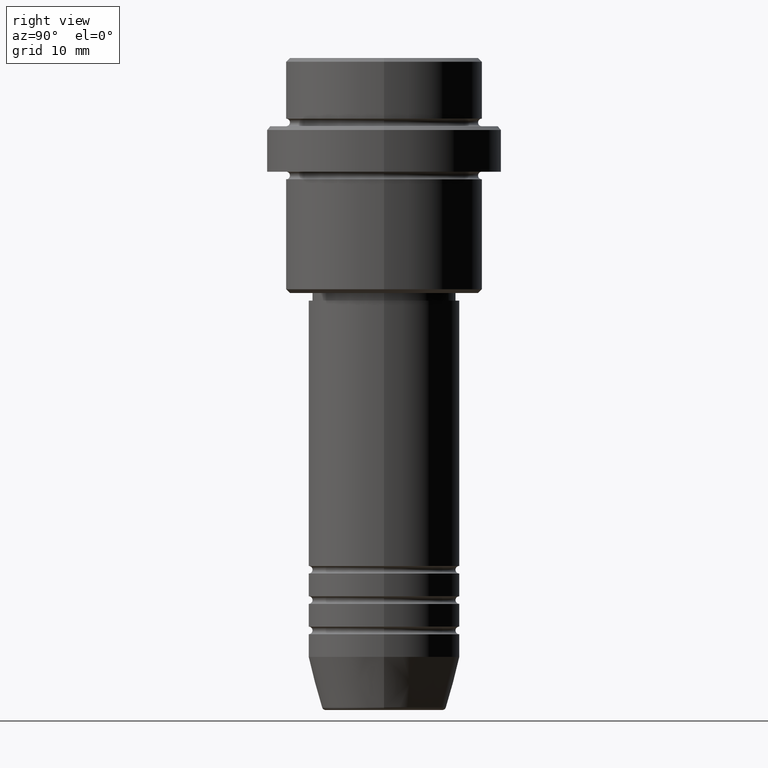
[diagram: clean part render]
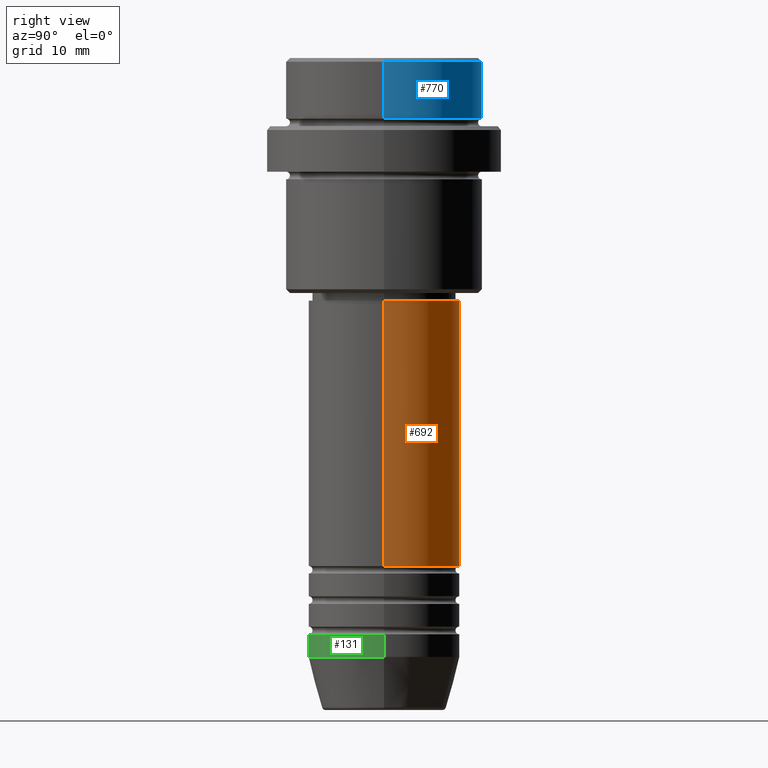
[diagram: same view with three faces highlighted in distinct colors, each labeled with its STEP entity id]
A machine part, right view with three faces highlighted in distinct colors.
Their STEP definitions:

[orange] entity #692 — the highlighted cylindrical surface (partial cylindrical patch) has radius 10 mm, axis along (-0, -0, 1).
#19 = EDGE_CURVE ( 'NONE', #992, #274, #1078, .T. ) ;
#23 = VERTEX_POINT ( 'NONE', #49 ) ;
#41 = CARTESIAN_POINT ( 'NONE',  ( 0.000000000000000000, 0.000000000000000000, -32.00000000000000000 ) ) ;
#49 = CARTESIAN_POINT ( 'NONE',  ( 10.00000000000000178, 0.000000000000000000, -32.00000000000000000 ) ) ;
#53 = CARTESIAN_POINT ( 'NONE',  ( 10.00000000000000178, 0.000000000000000000, 0.000000000000000000 ) ) ;
#61 = DIRECTION ( 'NONE',  ( -0.000000000000000000, -0.000000000000000000, 1.000000000000000000 ) ) ;
#259 = LINE ( 'NONE', #53, #638 ) ;
#274 = VERTEX_POINT ( 'NONE', #1248 ) ;
#306 = CARTESIAN_POINT ( 'NONE',  ( -10.00000000000000178, 1.224646799147353454E-15, 0.000000000000000000 ) ) ;
#349 = ORIENTED_EDGE ( 'NONE', *, *, #1397, .T. ) ;
#368 = ORIENTED_EDGE ( 'NONE', *, *, #418, .F. ) ;
#375 = DIRECTION ( 'NONE',  ( -0.000000000000000000, -0.000000000000000000, 1.000000000000000000 ) ) ;
#377 = CARTESIAN_POINT ( 'NONE',  ( -10.00000000000000000, 1.224646799147353256E-15, -66.99999999999988631 ) ) ;
#418 = EDGE_CURVE ( 'NONE', #440, #23, #259, .T. ) ;
#440 = VERTEX_POINT ( 'NONE', #1122 ) ;
#531 = CARTESIAN_POINT ( 'NONE',  ( 0.000000000000000000, 0.000000000000000000, 0.000000000000000000 ) ) ;
#638 = VECTOR ( 'NONE', #1152, 1000.000000000000000 ) ;
#692 = ADVANCED_FACE ( 'NONE', ( #1259 ), #1062, .T. ) ;
#699 = DIRECTION ( 'NONE',  ( -0.000000000000000000, -0.000000000000000000, 1.000000000000000000 ) ) ;
#714 = ORIENTED_EDGE ( 'NONE', *, *, #1301, .F. ) ;
#754 = DIRECTION ( 'NONE',  ( -0.000000000000000000, -0.000000000000000000, 1.000000000000000000 ) ) ;
#782 = VECTOR ( 'NONE', #754, 1000.000000000000000 ) ;
#801 = DIRECTION ( 'NONE',  ( 1.000000000000000000, 0.000000000000000000, 0.000000000000000000 ) ) ;
#832 = CIRCLE ( 'NONE', #1118, 10.00000000000000000 ) ;
#876 = CIRCLE ( 'NONE', #1404, 10.00000000000000178 ) ;
#928 = DIRECTION ( 'NONE',  ( 1.000000000000000000, 0.000000000000000000, 0.000000000000000000 ) ) ;
#949 = AXIS2_PLACEMENT_3D ( 'NONE', #531, #61, #1396 ) ;
#992 = VERTEX_POINT ( 'NONE', #377 ) ;
#1006 = ORIENTED_EDGE ( 'NONE', *, *, #19, .T. ) ;
#1062 = CYLINDRICAL_SURFACE ( 'NONE', #949, 10.00000000000000178 ) ;
#1074 = EDGE_LOOP ( 'NONE', ( #349, #1006, #714, #368 ) ) ;
#1078 = LINE ( 'NONE', #306, #782 ) ;
#1118 = AXIS2_PLACEMENT_3D ( 'NONE', #1324, #375, #928 ) ;
#1122 = CARTESIAN_POINT ( 'NONE',  ( 10.00000000000000000, 0.000000000000000000, -66.99999999999988631 ) ) ;
#1152 = DIRECTION ( 'NONE',  ( -0.000000000000000000, -0.000000000000000000, 1.000000000000000000 ) ) ;
#1248 = CARTESIAN_POINT ( 'NONE',  ( -10.00000000000000178, 1.224646799147353454E-15, -32.00000000000000000 ) ) ;
#1259 = FACE_OUTER_BOUND ( 'NONE', #1074, .T. ) ;
#1301 = EDGE_CURVE ( 'NONE', #23, #274, #876, .T. ) ;
#1324 = CARTESIAN_POINT ( 'NONE',  ( 0.000000000000000000, 0.000000000000000000, -66.99999999999988631 ) ) ;
#1396 = DIRECTION ( 'NONE',  ( 1.000000000000000000, 0.000000000000000000, 0.000000000000000000 ) ) ;
#1397 = EDGE_CURVE ( 'NONE', #440, #992, #832, .T. ) ;
#1404 = AXIS2_PLACEMENT_3D ( 'NONE', #41, #699, #801 ) ;

[blue] entity #770 — the highlighted cylindrical surface (partial cylindrical patch) has radius 13 mm, axis along (-0, -0, 1).
#25 = AXIS2_PLACEMENT_3D ( 'NONE', #122, #996, #444 ) ;
#74 = VERTEX_POINT ( 'NONE', #1159 ) ;
#86 = VERTEX_POINT ( 'NONE', #938 ) ;
#122 = CARTESIAN_POINT ( 'NONE',  ( 0.000000000000000000, 0.000000000000000000, 0.000000000000000000 ) ) ;
#145 = EDGE_LOOP ( 'NONE', ( #250, #1255, #1191, #1298 ) ) ;
#246 = DIRECTION ( 'NONE',  ( -0.000000000000000000, -0.000000000000000000, 1.000000000000000000 ) ) ;
#250 = ORIENTED_EDGE ( 'NONE', *, *, #1000, .T. ) ;
#300 = CARTESIAN_POINT ( 'NONE',  ( 0.000000000000000000, 0.000000000000000000, -0.4999999999999899525 ) ) ;
#356 = VERTEX_POINT ( 'NONE', #1079 ) ;
#390 = LINE ( 'NONE', #1336, #1247 ) ;
#444 = DIRECTION ( 'NONE',  ( 1.000000000000000000, 0.000000000000000000, 0.000000000000000000 ) ) ;
#449 = EDGE_CURVE ( 'NONE', #86, #74, #390, .T. ) ;
#581 = EDGE_CURVE ( 'NONE', #1262, #356, #1066, .T. ) ;
#669 = CYLINDRICAL_SURFACE ( 'NONE', #25, 12.99999999999999822 ) ;
#708 = EDGE_CURVE ( 'NONE', #356, #74, #810, .T. ) ;
#747 = DIRECTION ( 'NONE',  ( 0.000000000000000000, 0.000000000000000000, -1.000000000000000000 ) ) ;
#764 = DIRECTION ( 'NONE',  ( -0.000000000000000000, -0.000000000000000000, 1.000000000000000000 ) ) ;
#770 = ADVANCED_FACE ( 'NONE', ( #910 ), #669, .T. ) ;
#810 = CIRCLE ( 'NONE', #997, 12.99999999999999822 ) ;
#824 = DIRECTION ( 'NONE',  ( 1.000000000000000000, 0.000000000000000000, 0.000000000000000000 ) ) ;
#838 = DIRECTION ( 'NONE',  ( -0.000000000000000000, -0.000000000000000000, 1.000000000000000000 ) ) ;
#910 = FACE_OUTER_BOUND ( 'NONE', #145, .T. ) ;
#938 = CARTESIAN_POINT ( 'NONE',  ( 12.99999999999999822, 0.000000000000000000, -7.999999999999998224 ) ) ;
#996 = DIRECTION ( 'NONE',  ( -0.000000000000000000, -0.000000000000000000, 1.000000000000000000 ) ) ;
#997 = AXIS2_PLACEMENT_3D ( 'NONE', #300, #747, #1157 ) ;
#1000 = EDGE_CURVE ( 'NONE', #86, #1262, #1132, .T. ) ;
#1066 = LINE ( 'NONE', #1178, #1207 ) ;
#1079 = CARTESIAN_POINT ( 'NONE',  ( -12.99999999999999822, 1.592040838891558898E-15, -0.4999999999999899525 ) ) ;
#1132 = CIRCLE ( 'NONE', #1179, 12.99999999999999822 ) ;
#1157 = DIRECTION ( 'NONE',  ( 1.000000000000000000, 0.000000000000000000, 0.000000000000000000 ) ) ;
#1159 = CARTESIAN_POINT ( 'NONE',  ( 12.99999999999999822, 0.000000000000000000, -0.4999999999999899525 ) ) ;
#1178 = CARTESIAN_POINT ( 'NONE',  ( -12.99999999999999822, 1.592040838891558898E-15, 0.000000000000000000 ) ) ;
#1179 = AXIS2_PLACEMENT_3D ( 'NONE', #1228, #246, #824 ) ;
#1191 = ORIENTED_EDGE ( 'NONE', *, *, #708, .T. ) ;
#1207 = VECTOR ( 'NONE', #764, 1000.000000000000000 ) ;
#1228 = CARTESIAN_POINT ( 'NONE',  ( 0.000000000000000000, 0.000000000000000000, -7.999999999999998224 ) ) ;
#1247 = VECTOR ( 'NONE', #838, 1000.000000000000000 ) ;
#1255 = ORIENTED_EDGE ( 'NONE', *, *, #581, .T. ) ;
#1262 = VERTEX_POINT ( 'NONE', #1313 ) ;
#1298 = ORIENTED_EDGE ( 'NONE', *, *, #449, .F. ) ;
#1313 = CARTESIAN_POINT ( 'NONE',  ( -12.99999999999999822, 1.592040838891558898E-15, -7.999999999999998224 ) ) ;
#1336 = CARTESIAN_POINT ( 'NONE',  ( 12.99999999999999822, 0.000000000000000000, 0.000000000000000000 ) ) ;

[green] entity #131 — the highlighted cylindrical surface (partial cylindrical patch) has radius 10 mm, axis along (-0, -0, 1).
#30 = AXIS2_PLACEMENT_3D ( 'NONE', #943, #954, #1366 ) ;
#59 = LINE ( 'NONE', #503, #831 ) ;
#87 = EDGE_CURVE ( 'NONE', #818, #1103, #290, .T. ) ;
#131 = ADVANCED_FACE ( 'NONE', ( #350 ), #682, .T. ) ;
#184 = EDGE_CURVE ( 'NONE', #1124, #818, #59, .T. ) ;
#191 = DIRECTION ( 'NONE',  ( 1.000000000000000000, 0.000000000000000000, 0.000000000000000000 ) ) ;
#202 = ORIENTED_EDGE ( 'NONE', *, *, #532, .T. ) ;
#222 = CIRCLE ( 'NONE', #1047, 10.00000000000000000 ) ;
#290 = CIRCLE ( 'NONE', #30, 10.00000000000000000 ) ;
#303 = CARTESIAN_POINT ( 'NONE',  ( 10.00000000000000000, 0.000000000000000000, -76.00000000000000000 ) ) ;
#308 = CARTESIAN_POINT ( 'NONE',  ( -10.00000000000000000, 1.224646799147353256E-15, -79.00000000000000000 ) ) ;
#350 = FACE_OUTER_BOUND ( 'NONE', #1416, .T. ) ;
#420 = CARTESIAN_POINT ( 'NONE',  ( 10.00000000000000000, 0.000000000000000000, -79.00000000000000000 ) ) ;
#491 = DIRECTION ( 'NONE',  ( -0.000000000000000000, -0.000000000000000000, 1.000000000000000000 ) ) ;
#503 = CARTESIAN_POINT ( 'NONE',  ( -10.00000000000000000, 1.224646799147353256E-15, 0.000000000000000000 ) ) ;
#532 = EDGE_CURVE ( 'NONE', #1146, #1103, #599, .T. ) ;
#586 = DIRECTION ( 'NONE',  ( -0.000000000000000000, -0.000000000000000000, 1.000000000000000000 ) ) ;
#599 = LINE ( 'NONE', #690, #709 ) ;
#616 = CARTESIAN_POINT ( 'NONE',  ( 0.000000000000000000, 0.000000000000000000, -79.00000000000000000 ) ) ;
#627 = DIRECTION ( 'NONE',  ( -0.000000000000000000, -0.000000000000000000, 1.000000000000000000 ) ) ;
#649 = DIRECTION ( 'NONE',  ( 1.000000000000000000, 0.000000000000000000, 0.000000000000000000 ) ) ;
#680 = CARTESIAN_POINT ( 'NONE',  ( -10.00000000000000000, 1.224646799147353256E-15, -76.00000000000000000 ) ) ;
#682 = CYLINDRICAL_SURFACE ( 'NONE', #1030, 10.00000000000000000 ) ;
#690 = CARTESIAN_POINT ( 'NONE',  ( 10.00000000000000000, 0.000000000000000000, 0.000000000000000000 ) ) ;
#709 = VECTOR ( 'NONE', #586, 1000.000000000000000 ) ;
#750 = ORIENTED_EDGE ( 'NONE', *, *, #184, .F. ) ;
#778 = CARTESIAN_POINT ( 'NONE',  ( 0.000000000000000000, 0.000000000000000000, 0.000000000000000000 ) ) ;
#796 = ORIENTED_EDGE ( 'NONE', *, *, #87, .F. ) ;
#818 = VERTEX_POINT ( 'NONE', #680 ) ;
#831 = VECTOR ( 'NONE', #491, 1000.000000000000000 ) ;
#943 = CARTESIAN_POINT ( 'NONE',  ( 0.000000000000000000, 0.000000000000000000, -76.00000000000000000 ) ) ;
#954 = DIRECTION ( 'NONE',  ( -0.000000000000000000, -0.000000000000000000, 1.000000000000000000 ) ) ;
#1030 = AXIS2_PLACEMENT_3D ( 'NONE', #778, #1210, #649 ) ;
#1047 = AXIS2_PLACEMENT_3D ( 'NONE', #616, #627, #191 ) ;
#1048 = EDGE_CURVE ( 'NONE', #1124, #1146, #222, .T. ) ;
#1103 = VERTEX_POINT ( 'NONE', #303 ) ;
#1124 = VERTEX_POINT ( 'NONE', #308 ) ;
#1146 = VERTEX_POINT ( 'NONE', #420 ) ;
#1210 = DIRECTION ( 'NONE',  ( -0.000000000000000000, -0.000000000000000000, 1.000000000000000000 ) ) ;
#1300 = ORIENTED_EDGE ( 'NONE', *, *, #1048, .T. ) ;
#1366 = DIRECTION ( 'NONE',  ( 1.000000000000000000, 0.000000000000000000, 0.000000000000000000 ) ) ;
#1416 = EDGE_LOOP ( 'NONE', ( #750, #1300, #202, #796 ) ) ;